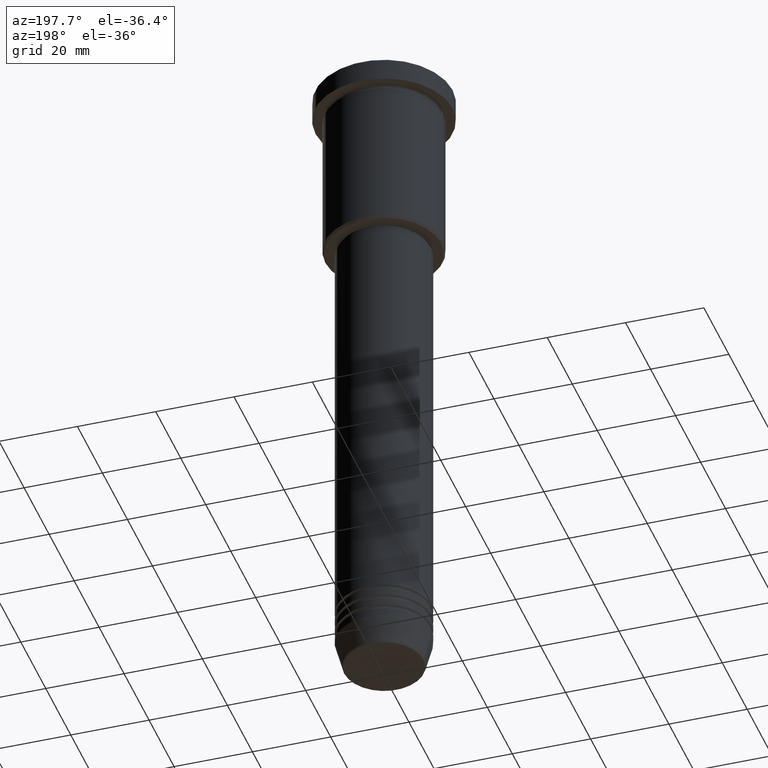
[diagram: clean part render]
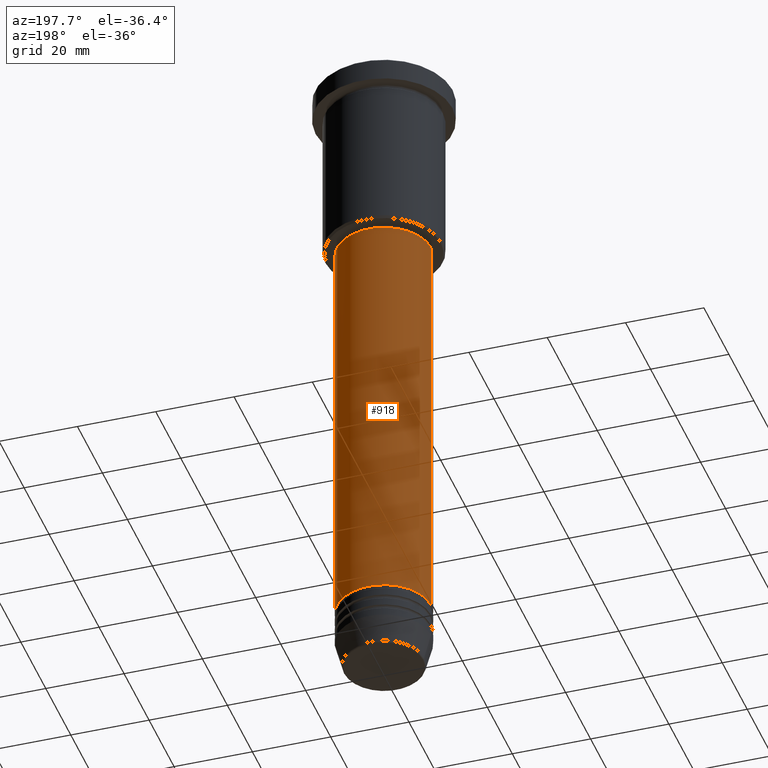
[diagram: same view with one face highlighted and labeled with its STEP entity id]
A machine part, auxiliary view. The second image highlights one B-rep face of the part: STEP entity #918.
In plain terms, the highlighted cylindrical surface (partial cylindrical patch) has radius 12 mm, axis along (-0, -0, 1).
Its self-contained STEP definition (entity closure, byte-faithful):
#107 = DIRECTION ( 'NONE',  ( -0.000000000000000000, -0.000000000000000000, 1.000000000000000000 ) ) ;
#183 = EDGE_CURVE ( 'NONE', #386, #468, #739, .T. ) ;
#200 = CARTESIAN_POINT ( 'NONE',  ( -12.00000000000000000, 1.469576158976823947E-15, 0.000000000000000000 ) ) ;
#254 = EDGE_CURVE ( 'NONE', #447, #386, #606, .T. ) ;
#261 = AXIS2_PLACEMENT_3D ( 'NONE', #650, #482, #767 ) ;
#326 = CYLINDRICAL_SURFACE ( 'NONE', #782, 12.00000000000000000 ) ;
#327 = CARTESIAN_POINT ( 'NONE',  ( 0.000000000000000000, 0.000000000000000000, -47.00000000000000711 ) ) ;
#386 = VERTEX_POINT ( 'NONE', #656 ) ;
#408 = CARTESIAN_POINT ( 'NONE',  ( 12.00000000000000000, 0.000000000000000000, -154.9999999999999716 ) ) ;
#412 = VECTOR ( 'NONE', #1029, 1000.000000000000000 ) ;
#429 = ORIENTED_EDGE ( 'NONE', *, *, #1178, .F. ) ;
#434 = CIRCLE ( 'NONE', #1103, 12.00000000000000000 ) ;
#447 = VERTEX_POINT ( 'NONE', #408 ) ;
#468 = VERTEX_POINT ( 'NONE', #1039 ) ;
#482 = DIRECTION ( 'NONE',  ( -0.000000000000000000, -0.000000000000000000, 1.000000000000000000 ) ) ;
#512 = CARTESIAN_POINT ( 'NONE',  ( 12.00000000000000000, 0.000000000000000000, -47.00000000000000711 ) ) ;
#554 = EDGE_LOOP ( 'NONE', ( #961, #675, #1171, #429 ) ) ;
#555 = DIRECTION ( 'NONE',  ( 1.000000000000000000, 0.000000000000000000, 0.000000000000000000 ) ) ;
#568 = CARTESIAN_POINT ( 'NONE',  ( 12.00000000000000000, 0.000000000000000000, 0.000000000000000000 ) ) ;
#606 = CIRCLE ( 'NONE', #261, 12.00000000000000000 ) ;
#650 = CARTESIAN_POINT ( 'NONE',  ( 0.000000000000000000, 0.000000000000000000, -154.9999999999999716 ) ) ;
#656 = CARTESIAN_POINT ( 'NONE',  ( -12.00000000000000000, 1.469576158976823947E-15, -154.9999999999999716 ) ) ;
#675 = ORIENTED_EDGE ( 'NONE', *, *, #183, .T. ) ;
#694 = DIRECTION ( 'NONE',  ( -0.000000000000000000, -0.000000000000000000, 1.000000000000000000 ) ) ;
#739 = LINE ( 'NONE', #200, #412 ) ;
#765 = VECTOR ( 'NONE', #1127, 1000.000000000000000 ) ;
#767 = DIRECTION ( 'NONE',  ( 1.000000000000000000, 0.000000000000000000, 0.000000000000000000 ) ) ;
#782 = AXIS2_PLACEMENT_3D ( 'NONE', #1058, #107, #555 ) ;
#786 = DIRECTION ( 'NONE',  ( 1.000000000000000000, 0.000000000000000000, 0.000000000000000000 ) ) ;
#802 = FACE_OUTER_BOUND ( 'NONE', #554, .T. ) ;
#857 = EDGE_CURVE ( 'NONE', #966, #468, #434, .T. ) ;
#918 = ADVANCED_FACE ( 'NONE', ( #802 ), #326, .T. ) ;
#961 = ORIENTED_EDGE ( 'NONE', *, *, #254, .T. ) ;
#966 = VERTEX_POINT ( 'NONE', #512 ) ;
#1029 = DIRECTION ( 'NONE',  ( -0.000000000000000000, -0.000000000000000000, 1.000000000000000000 ) ) ;
#1039 = CARTESIAN_POINT ( 'NONE',  ( -12.00000000000000000, 1.469576158976823947E-15, -47.00000000000000711 ) ) ;
#1058 = CARTESIAN_POINT ( 'NONE',  ( 0.000000000000000000, 0.000000000000000000, 0.000000000000000000 ) ) ;
#1103 = AXIS2_PLACEMENT_3D ( 'NONE', #327, #694, #786 ) ;
#1127 = DIRECTION ( 'NONE',  ( -0.000000000000000000, -0.000000000000000000, 1.000000000000000000 ) ) ;
#1133 = LINE ( 'NONE', #568, #765 ) ;
#1171 = ORIENTED_EDGE ( 'NONE', *, *, #857, .F. ) ;
#1178 = EDGE_CURVE ( 'NONE', #447, #966, #1133, .T. ) ;